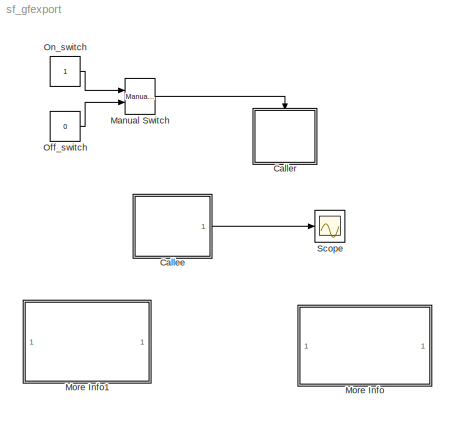
MODEL sf_gfexport
KIND model
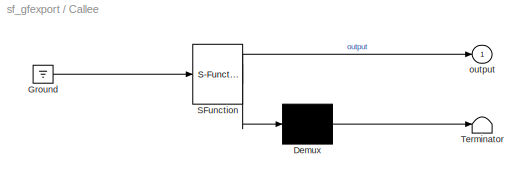
BLOCK [SubSystem] Callee
  MaskDescription = Stateflow diagram
  MaskDisplay = plot(sf('Private','sfblk','xIcon'),sf('Private','sfblk','yIcon'));text(0.5,0,sf('Private', 'sfblk', 'tIcon'),'HorizontalAl','Center','VerticalAl','Bottom');
  MaskIconFrame = off
  MaskIconOpaque = off
  MaskIconRotate = none
  MaskIconUnits = autoscale
  MaskSelfModifiable = on
  MaskType = Stateflow
  MinAlgLoopOccurrences = off
  Ports = [0, 1]
  PropExecContextAcrossSSBoundary = on
  RTWSystemCode = Auto
  TreatAsAtomicUnit = off
BLOCK [Demux] Callee/ Demux 
  Outputs = 1
  Ports = [1, 1]
BLOCK [Ground] Callee/ Ground 
BLOCK [S-Function] Callee/ SFunction 
  FunctionName = sf_sfun
  PortCounts = [1 2]
  Ports = [1, 2]
  Tag = Stateflow S-Function sf_gfexport 2
BLOCK [Terminator] Callee/ Terminator 
BLOCK [Outport] Callee/output
  IconDisplay = Port number
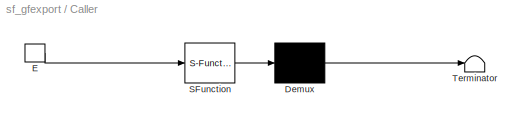
BLOCK [SubSystem] Caller
  MaskDescription = Stateflow diagram
  MaskDisplay = plot(sf('Private','sfblk','xIcon'),sf('Private','sfblk','yIcon'));text(0.5,0,sf('Private', 'sfblk', 'tIcon'),'HorizontalAl','Center','VerticalAl','Bottom');
  MaskIconFrame = off
  MaskIconOpaque = off
  MaskIconRotate = none
  MaskIconUnits = autoscale
  MaskSelfModifiable = on
  MaskType = Stateflow
  MinAlgLoopOccurrences = off
  Ports = [0, 0, 0, 1]
  PropExecContextAcrossSSBoundary = on
  RTWSystemCode = Auto
  TreatAsAtomicUnit = on
BLOCK [Demux] Caller/ Demux 
  Outputs = 1
  Ports = [1, 1]
BLOCK [S-Function] Caller/ SFunction 
  FunctionName = sf_sfun
  PortCounts = [1 1]
  Ports = [1, 1]
  Tag = Stateflow S-Function sf_gfexport 1
BLOCK [Terminator] Caller/ Terminator 
BLOCK [TriggerPort] Caller/E
  Ports = [0, 1]
  ShowOutputPort = on
  TriggerType = either
BLOCK [Reference] Manual Switch  REF=simulink/Signal\nRouting/Manual Switch
  Ports = [2, 1]
  ShowPortLabels = on
  SourceBlock = simulink/Signal\nRouting/Manual Switch
  SourceType = Manual Switch
  action = 0
  sw = 0
BLOCK [SubSystem] More Info
  MaskDisplay = disp('Double click\\nhere for\\ninformation on\\nthis demonstration')
  MaskIconFrame = on
  MaskIconOpaque = on
  MaskIconRotate = none
  MaskIconUnits = autoscale
  MinAlgLoopOccurrences = off
  Ports = []
  PropExecContextAcrossSSBoundary = on
  RTWSystemCode = Auto
  TreatAsAtomicUnit = off
BLOCK [SubSystem] More Info1
  MaskDisplay = disp('Double click\\nhere for<path> Help')
  MaskIconFrame = on
  MaskIconOpaque = on
  MaskIconRotate = none
  MaskIconUnits = autoscale
  MinAlgLoopOccurrences = off
  OpenFcn = simcad(bdroot);
  Ports = []
  PropExecContextAcrossSSBoundary = on
  RTWSystemCode = Auto
  TreatAsAtomicUnit = off
BLOCK [Constant] Off_switch
  Value = 0
BLOCK [Constant] On_switch
BLOCK [Scope] Scope
  DataFormat = StructureWithTime
  NumInputPorts = 1
  Ports = [1]
  TimeRange = 10
  YMax = 1.3
  YMin = -1
ANNOTATION More Info: Graphical Function Demonstration
ANNOTATION More Info: This demonstration illustrates how graphical functions can be exported and used as a means for \naccessing data. The output shown in the scope block, is equal to 1 when the manual switch is in the\nOn_switch state, or 0 when the switch is in the Off_switch state. \n\nThe Caller chart is triggered by the Manual Switch. Graphical functions which are defined in the Callee\nchart, are then called by t...<+384ch>
LINE Callee/ Demux :1 -> Callee/ Terminator :1
LINE Callee/ Ground :1 -> Callee/ SFunction :1
LINE Callee/ SFunction :1 -> Callee/ Demux :1
LINE Callee/ SFunction :2 -> Callee/output:1
LINE Callee:1 -> Scope:1
LINE Caller/ Demux :1 -> Caller/ Terminator :1
LINE Caller/ SFunction :1 -> Caller/ Demux :1
LINE Caller/E:1 -> Caller/ SFunction :1
LINE Manual Switch:1 -> Caller:trigger
LINE Off_switch:1 -> Manual Switch:2
LINE On_switch:1 -> Manual Switch:1
CHART Caller states=0 transitions=3
CHART Callee states=5 transitions=6
  STATE_LABEL 'A\\nentry: output = 0;'
  STATE_LABEL 'B\\nentry: output = 1;'
  STATE_LABEL 'activity = is_A_active()'
  STATE_LABEL 'send_event_to_A()'
  STATE_LABEL 'send_event_to_B()'
note: 1 file-system path scrubbed to <path> (not preserved elsewhere — flat text is the only slx artifact)
